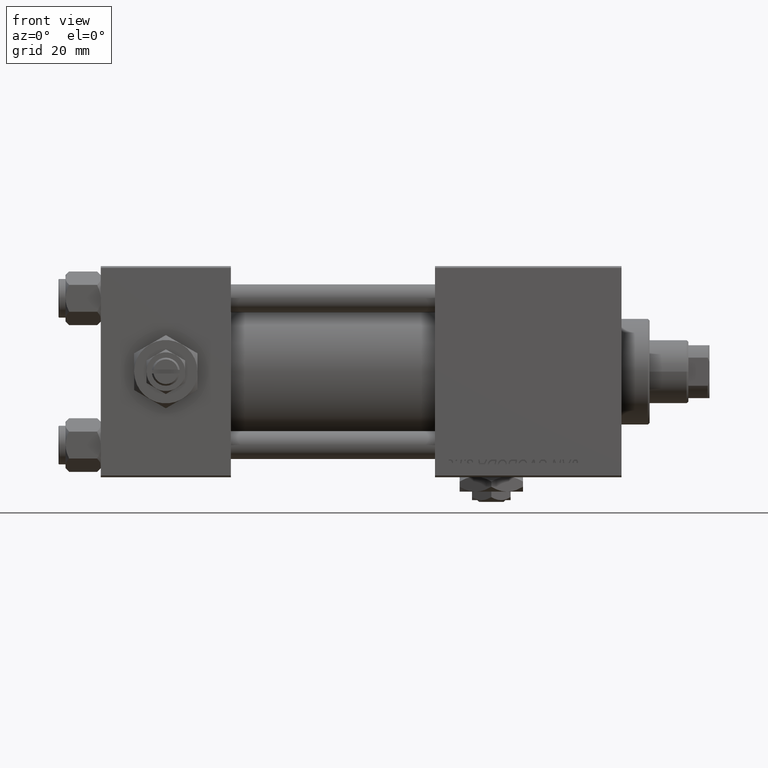
[diagram: clean part render]
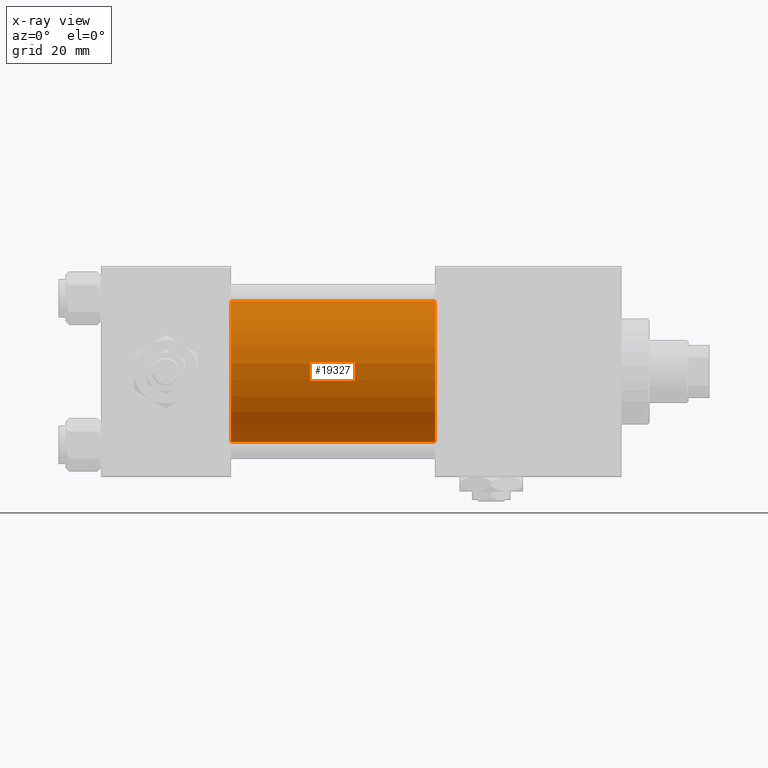
[diagram: x-ray — body ghosted, one internal face saturated and labeled with its STEP entity id]
A machine part, front view, then the same camera in x-ray: the body is ghosted and one INTERNAL B-rep face — a face not visible from any outside direction — is saturated and labeled: STEP entity #19327.
In plain terms, the highlighted cylindrical surface (partial cylindrical patch) has radius 20 mm, axis along (-1, -0, -0).
Its self-contained STEP definition (entity closure, byte-faithful):
#140 = ORIENTED_EDGE ( 'NONE', *, *, #25910, .F. ) ;
#2739 = CIRCLE ( 'NONE', #32251, 20.00000000000000000 ) ;
#3200 = DIRECTION ( 'NONE',  ( 1.000000000000000000, 0.000000000000000000, 0.000000000000000000 ) ) ;
#5125 = DIRECTION ( 'NONE',  ( 0.000000000000000000, 0.000000000000000000, 1.000000000000000000 ) ) ;
#8894 = DIRECTION ( 'NONE',  ( 1.000000000000000000, 0.000000000000000000, 0.000000000000000000 ) ) ;
#11921 = DIRECTION ( 'NONE',  ( 0.000000000000000000, 0.000000000000000000, -1.000000000000000000 ) ) ;
#12388 = VERTEX_POINT ( 'NONE', #19645 ) ;
#13806 = EDGE_CURVE ( 'NONE', #40856, #12388, #31879, .T. ) ;
#13933 = EDGE_CURVE ( 'NONE', #26265, #50633, #37151, .T. ) ;
#15797 = CARTESIAN_POINT ( 'NONE',  ( 95.00000000000000000, -2.602085213965210642E-15, 0.000000000000000000 ) ) ;
#17332 = CARTESIAN_POINT ( 'NONE',  ( 37.00000000000000000, -1.527916156705046464E-16, -20.00000000000000000 ) ) ;
#17585 = AXIS2_PLACEMENT_3D ( 'NONE', #44543, #8894, #41102 ) ;
#19327 = ADVANCED_FACE ( 'NONE', ( #31875 ), #28651, .F. ) ;
#19645 = CARTESIAN_POINT ( 'NONE',  ( 37.00000000000000000, -2.602085213965210642E-15, 20.00000000000000000 ) ) ;
#21425 = ORIENTED_EDGE ( 'NONE', *, *, #41324, .T. ) ;
#23127 = EDGE_LOOP ( 'NONE', ( #21425, #51322, #140, #43605 ) ) ;
#23792 = CARTESIAN_POINT ( 'NONE',  ( 37.00000000000000000, -2.602085213965210642E-15, 0.000000000000000000 ) ) ;
#24491 = CARTESIAN_POINT ( 'NONE',  ( 95.00000000000000000, -2.602085213965210642E-15, 20.00000000000000000 ) ) ;
#25910 = EDGE_CURVE ( 'NONE', #12388, #50633, #2739, .T. ) ;
#26175 = VECTOR ( 'NONE', #44014, 1000.000000000000000 ) ;
#26265 = VERTEX_POINT ( 'NONE', #35798 ) ;
#28651 = CYLINDRICAL_SURFACE ( 'NONE', #34755, 20.00000000000000000 ) ;
#30701 = CARTESIAN_POINT ( 'NONE',  ( 95.00000000000000000, -2.602085213965210642E-15, 20.00000000000000000 ) ) ;
#31875 = FACE_OUTER_BOUND ( 'NONE', #23127, .T. ) ;
#31879 = LINE ( 'NONE', #24491, #26175 ) ;
#32251 = AXIS2_PLACEMENT_3D ( 'NONE', #23792, #3200, #11921 ) ;
#34755 = AXIS2_PLACEMENT_3D ( 'NONE', #15797, #41038, #5125 ) ;
#35798 = CARTESIAN_POINT ( 'NONE',  ( 95.00000000000000000, -1.527916156705046464E-16, -20.00000000000000000 ) ) ;
#37151 = LINE ( 'NONE', #41626, #50625 ) ;
#40856 = VERTEX_POINT ( 'NONE', #30701 ) ;
#41038 = DIRECTION ( 'NONE',  ( -1.000000000000000000, -0.000000000000000000, -0.000000000000000000 ) ) ;
#41102 = DIRECTION ( 'NONE',  ( 0.000000000000000000, 0.000000000000000000, -1.000000000000000000 ) ) ;
#41324 = EDGE_CURVE ( 'NONE', #40856, #26265, #44545, .T. ) ;
#41626 = CARTESIAN_POINT ( 'NONE',  ( 95.00000000000000000, -1.527916156705046464E-16, -20.00000000000000000 ) ) ;
#43605 = ORIENTED_EDGE ( 'NONE', *, *, #13806, .F. ) ;
#44014 = DIRECTION ( 'NONE',  ( -1.000000000000000000, -0.000000000000000000, -0.000000000000000000 ) ) ;
#44543 = CARTESIAN_POINT ( 'NONE',  ( 95.00000000000000000, -2.602085213965210642E-15, 0.000000000000000000 ) ) ;
#44545 = CIRCLE ( 'NONE', #17585, 20.00000000000000000 ) ;
#49284 = DIRECTION ( 'NONE',  ( -1.000000000000000000, -0.000000000000000000, -0.000000000000000000 ) ) ;
#50625 = VECTOR ( 'NONE', #49284, 1000.000000000000000 ) ;
#50633 = VERTEX_POINT ( 'NONE', #17332 ) ;
#51322 = ORIENTED_EDGE ( 'NONE', *, *, #13933, .T. ) ;